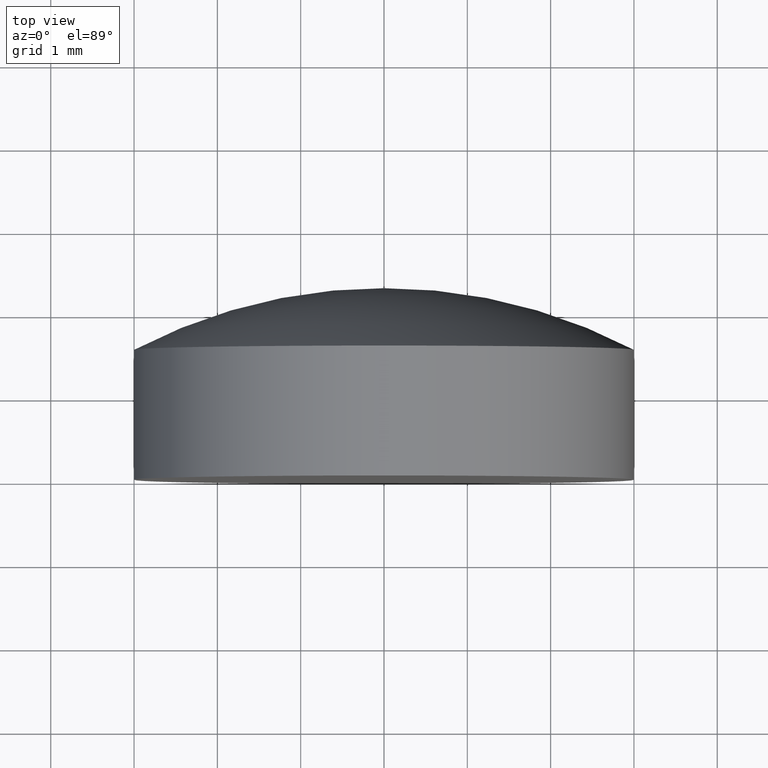
[diagram: clean part render]
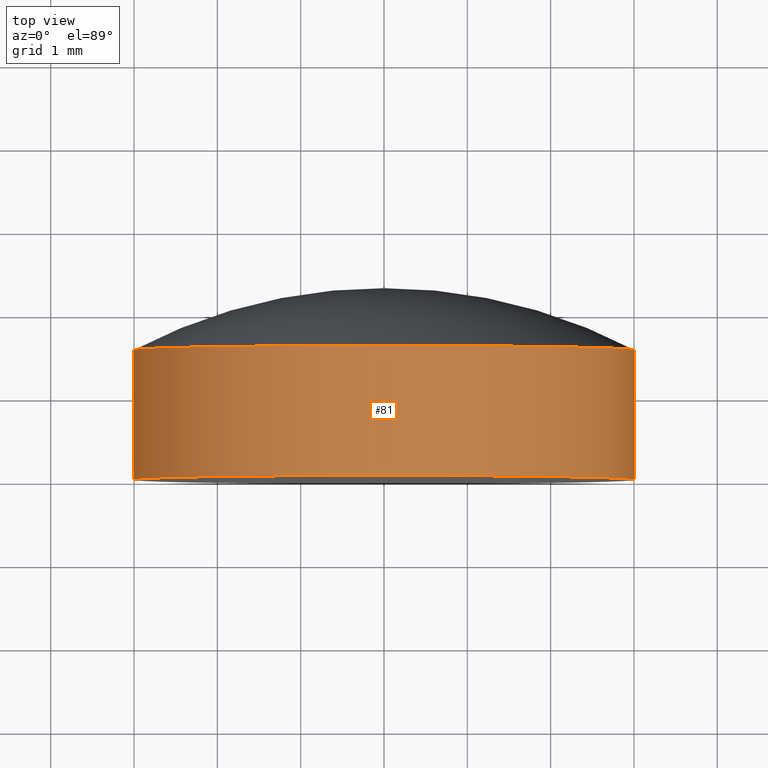
[diagram: same view with one face highlighted and labeled with its STEP entity id]
A machine part, top view. The second image highlights one B-rep face of the part: STEP entity #81.
In plain terms, the highlighted cylindrical surface (partial cylindrical patch) has radius 3 mm, axis along (-0, 1, -0).
Its self-contained STEP definition (entity closure, byte-faithful):
#3 = ORIENTED_EDGE ( 'NONE', *, *, #39, .F. ) ;
#4 = CARTESIAN_POINT ( 'NONE',  ( -3.000000000000000000, -4.792096170576599372E-17, 0.000000000000000000 ) ) ;
#10 = CIRCLE ( 'NONE', #59, 3.000000000000000000 ) ;
#12 = DIRECTION ( 'NONE',  ( -1.597365390192199380E-17, 1.000000000000000000, -0.000000000000000000 ) ) ;
#15 = DIRECTION ( 'NONE',  ( -1.597365390192199380E-17, 1.000000000000000000, -0.000000000000000000 ) ) ;
#36 = CARTESIAN_POINT ( 'NONE',  ( -2.491890008699830848E-17, 1.559999999999999609, 0.000000000000000000 ) ) ;
#39 = EDGE_CURVE ( 'NONE', #183, #87, #10, .T. ) ;
#40 = VECTOR ( 'NONE', #15, 1000.000000000000000 ) ;
#43 = CYLINDRICAL_SURFACE ( 'NONE', #138, 3.000000000000000000 ) ;
#47 = LINE ( 'NONE', #98, #40 ) ;
#52 = ORIENTED_EDGE ( 'NONE', *, *, #69, .T. ) ;
#55 = ORIENTED_EDGE ( 'NONE', *, *, #85, .T. ) ;
#59 = AXIS2_PLACEMENT_3D ( 'NONE', #36, #177, #106 ) ;
#60 = DIRECTION ( 'NONE',  ( -1.000000000000000000, 0.000000000000000000, 0.000000000000000000 ) ) ;
#66 = CARTESIAN_POINT ( 'NONE',  ( 3.000000000000000000, 1.559999999999999831, 3.673940397442059375E-16 ) ) ;
#69 = EDGE_CURVE ( 'NONE', #72, #87, #182, .T. ) ;
#72 = VERTEX_POINT ( 'NONE', #110 ) ;
#73 = CIRCLE ( 'NONE', #127, 3.000000000000000000 ) ;
#74 = CARTESIAN_POINT ( 'NONE',  ( -3.000000000000000000, 1.559999999999999831, 0.000000000000000000 ) ) ;
#79 = CARTESIAN_POINT ( 'NONE',  ( -3.673940397442058882E-17, 2.299999999999999822, 0.000000000000000000 ) ) ;
#81 = ADVANCED_FACE ( 'NONE', ( #139 ), #43, .T. ) ;
#85 = EDGE_CURVE ( 'NONE', #197, #72, #73, .T. ) ;
#87 = VERTEX_POINT ( 'NONE', #66 ) ;
#96 = CARTESIAN_POINT ( 'NONE',  ( 3.000000000000000000, 2.299999999999999822, 3.673940397442059868E-16 ) ) ;
#98 = CARTESIAN_POINT ( 'NONE',  ( -3.000000000000000000, 2.299999999999999822, 0.000000000000000000 ) ) ;
#105 = VECTOR ( 'NONE', #12, 1000.000000000000000 ) ;
#106 = DIRECTION ( 'NONE',  ( -1.000000000000000000, 0.000000000000000000, 0.000000000000000000 ) ) ;
#110 = CARTESIAN_POINT ( 'NONE',  ( 3.000000000000000000, 4.792096170576599372E-17, 3.673940397442059868E-16 ) ) ;
#112 = DIRECTION ( 'NONE',  ( -1.597365390192199688E-17, 1.000000000000000000, -0.000000000000000000 ) ) ;
#115 = ORIENTED_EDGE ( 'NONE', *, *, #120, .F. ) ;
#117 = EDGE_LOOP ( 'NONE', ( #55, #52, #3, #115 ) ) ;
#120 = EDGE_CURVE ( 'NONE', #197, #183, #47, .T. ) ;
#127 = AXIS2_PLACEMENT_3D ( 'NONE', #170, #112, #172 ) ;
#138 = AXIS2_PLACEMENT_3D ( 'NONE', #79, #196, #60 ) ;
#139 = FACE_OUTER_BOUND ( 'NONE', #117, .T. ) ;
#170 = CARTESIAN_POINT ( 'NONE',  ( 0.000000000000000000, 0.000000000000000000, 0.000000000000000000 ) ) ;
#172 = DIRECTION ( 'NONE',  ( -1.000000000000000000, -1.597365390192199688E-17, 0.000000000000000000 ) ) ;
#177 = DIRECTION ( 'NONE',  ( -1.597365390192199688E-17, 1.000000000000000000, -0.000000000000000000 ) ) ;
#182 = LINE ( 'NONE', #96, #105 ) ;
#183 = VERTEX_POINT ( 'NONE', #74 ) ;
#196 = DIRECTION ( 'NONE',  ( -1.597365390192199688E-17, 1.000000000000000000, -0.000000000000000000 ) ) ;
#197 = VERTEX_POINT ( 'NONE', #4 ) ;